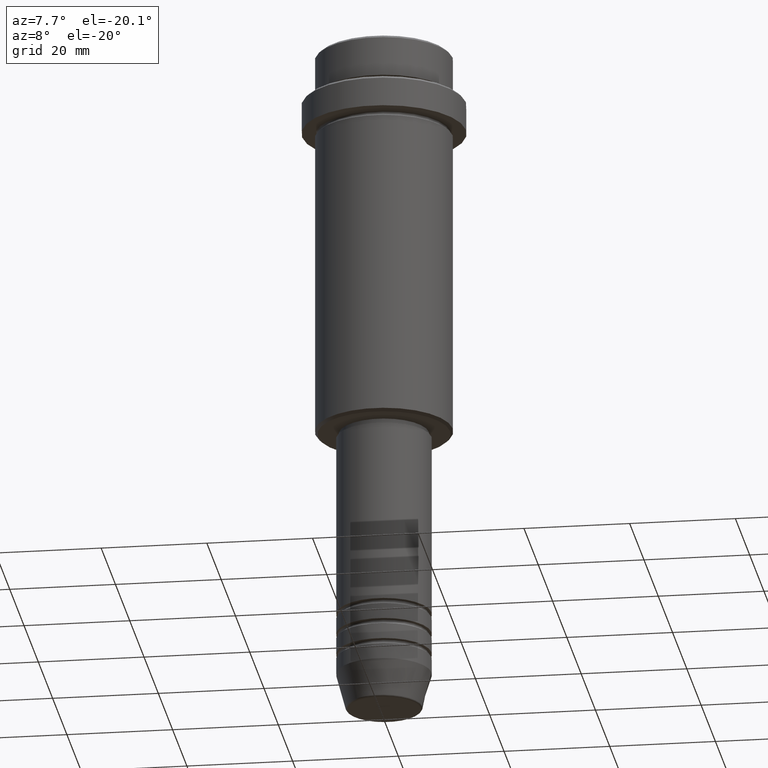
[diagram: clean part render]
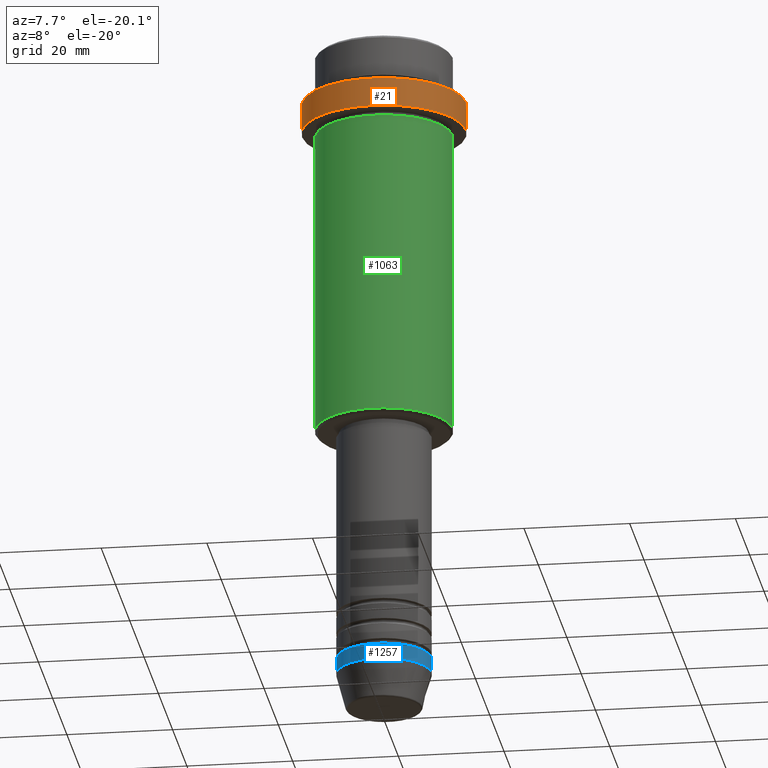
[diagram: same view with three faces highlighted in distinct colors, each labeled with its STEP entity id]
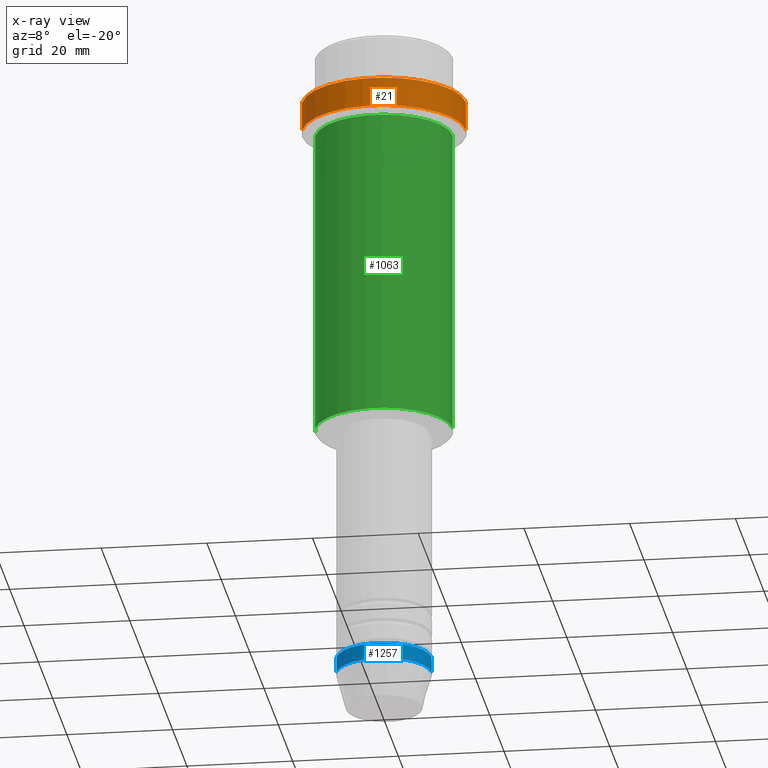
[diagram: x-ray of the same camera — body ghosted, the three highlighted faces saturated]
A machine part, auxiliary view with three faces highlighted in distinct colors.
The next image is the same camera in x-ray (body ghosted, the three faces saturated) — at least one of them is partly hidden behind the body in this view.
Their STEP definitions:

[orange] entity #21 — the highlighted cylindrical surface (partial cylindrical patch) has radius 15.5 mm, axis along (-0, -0, 1).
#21 = ADVANCED_FACE ( 'NONE', ( #635 ), #397, .T. ) ;
#45 = CARTESIAN_POINT ( 'NONE',  ( -15.50000000000000000, 1.898202538678397557E-15, -15.00000000000000000 ) ) ;
#54 = LINE ( 'NONE', #585, #1141 ) ;
#80 = DIRECTION ( 'NONE',  ( 1.000000000000000000, 0.000000000000000000, 0.000000000000000000 ) ) ;
#130 = CARTESIAN_POINT ( 'NONE',  ( 0.000000000000000000, 0.000000000000000000, -15.00000000000000000 ) ) ;
#149 = ORIENTED_EDGE ( 'NONE', *, *, #1332, .T. ) ;
#174 = EDGE_CURVE ( 'NONE', #1203, #442, #559, .T. ) ;
#210 = EDGE_CURVE ( 'NONE', #442, #282, #1304, .T. ) ;
#282 = VERTEX_POINT ( 'NONE', #1254 ) ;
#320 = CARTESIAN_POINT ( 'NONE',  ( 15.50000000000000000, 0.000000000000000000, 0.000000000000000000 ) ) ;
#397 = CYLINDRICAL_SURFACE ( 'NONE', #429, 15.50000000000000000 ) ;
#406 = DIRECTION ( 'NONE',  ( 1.000000000000000000, 0.000000000000000000, 0.000000000000000000 ) ) ;
#429 = AXIS2_PLACEMENT_3D ( 'NONE', #1269, #1060, #406 ) ;
#442 = VERTEX_POINT ( 'NONE', #740 ) ;
#454 = DIRECTION ( 'NONE',  ( -0.000000000000000000, -0.000000000000000000, 1.000000000000000000 ) ) ;
#559 = CIRCLE ( 'NONE', #1280, 15.50000000000000000 ) ;
#585 = CARTESIAN_POINT ( 'NONE',  ( -15.50000000000000000, 1.898202538678397557E-15, 0.000000000000000000 ) ) ;
#617 = DIRECTION ( 'NONE',  ( 0.000000000000000000, 0.000000000000000000, -1.000000000000000000 ) ) ;
#635 = FACE_OUTER_BOUND ( 'NONE', #1235, .T. ) ;
#740 = CARTESIAN_POINT ( 'NONE',  ( 15.50000000000000000, 0.000000000000000000, -15.00000000000000000 ) ) ;
#753 = DIRECTION ( 'NONE',  ( 1.000000000000000000, 0.000000000000000000, 0.000000000000000000 ) ) ;
#767 = ORIENTED_EDGE ( 'NONE', *, *, #174, .T. ) ;
#780 = ORIENTED_EDGE ( 'NONE', *, *, #210, .T. ) ;
#826 = CARTESIAN_POINT ( 'NONE',  ( 0.000000000000000000, 0.000000000000000000, -9.500000000000026645 ) ) ;
#873 = AXIS2_PLACEMENT_3D ( 'NONE', #826, #617, #80 ) ;
#882 = DIRECTION ( 'NONE',  ( -0.000000000000000000, -0.000000000000000000, 1.000000000000000000 ) ) ;
#960 = VERTEX_POINT ( 'NONE', #1155 ) ;
#974 = ORIENTED_EDGE ( 'NONE', *, *, #1139, .F. ) ;
#1060 = DIRECTION ( 'NONE',  ( -0.000000000000000000, -0.000000000000000000, 1.000000000000000000 ) ) ;
#1139 = EDGE_CURVE ( 'NONE', #1203, #960, #54, .T. ) ;
#1141 = VECTOR ( 'NONE', #454, 1000.000000000000000 ) ;
#1151 = CIRCLE ( 'NONE', #873, 15.50000000000000000 ) ;
#1155 = CARTESIAN_POINT ( 'NONE',  ( -15.50000000000000000, 1.898202538678397557E-15, -9.500000000000026645 ) ) ;
#1203 = VERTEX_POINT ( 'NONE', #45 ) ;
#1235 = EDGE_LOOP ( 'NONE', ( #974, #767, #780, #149 ) ) ;
#1254 = CARTESIAN_POINT ( 'NONE',  ( 15.50000000000000000, 0.000000000000000000, -9.500000000000026645 ) ) ;
#1269 = CARTESIAN_POINT ( 'NONE',  ( 0.000000000000000000, 0.000000000000000000, 0.000000000000000000 ) ) ;
#1280 = AXIS2_PLACEMENT_3D ( 'NONE', #130, #1325, #753 ) ;
#1304 = LINE ( 'NONE', #320, #1415 ) ;
#1325 = DIRECTION ( 'NONE',  ( -0.000000000000000000, -0.000000000000000000, 1.000000000000000000 ) ) ;
#1332 = EDGE_CURVE ( 'NONE', #282, #960, #1151, .T. ) ;
#1415 = VECTOR ( 'NONE', #882, 1000.000000000000000 ) ;

[blue] entity #1257 — the highlighted cylindrical surface (partial cylindrical patch) has radius 9 mm, axis along (-0, -0, 1).
#26 = FACE_OUTER_BOUND ( 'NONE', #212, .T. ) ;
#134 = ORIENTED_EDGE ( 'NONE', *, *, #153, .F. ) ;
#143 = CARTESIAN_POINT ( 'NONE',  ( 0.000000000000000000, 0.000000000000000000, 0.000000000000000000 ) ) ;
#147 = VERTEX_POINT ( 'NONE', #897 ) ;
#153 = EDGE_CURVE ( 'NONE', #521, #147, #868, .T. ) ;
#212 = EDGE_LOOP ( 'NONE', ( #615, #1247, #326, #134 ) ) ;
#245 = AXIS2_PLACEMENT_3D ( 'NONE', #1212, #549, #1333 ) ;
#272 = VERTEX_POINT ( 'NONE', #369 ) ;
#308 = CIRCLE ( 'NONE', #1119, 9.000000000000000000 ) ;
#326 = ORIENTED_EDGE ( 'NONE', *, *, #652, .T. ) ;
#349 = CYLINDRICAL_SURFACE ( 'NONE', #453, 9.000000000000000000 ) ;
#369 = CARTESIAN_POINT ( 'NONE',  ( -9.000000000000000000, 1.102182119232617714E-15, -123.0000000000000000 ) ) ;
#404 = CARTESIAN_POINT ( 'NONE',  ( -9.000000000000000000, 1.102182119232617714E-15, 0.000000000000000000 ) ) ;
#453 = AXIS2_PLACEMENT_3D ( 'NONE', #143, #782, #1225 ) ;
#519 = EDGE_CURVE ( 'NONE', #272, #521, #732, .T. ) ;
#521 = VERTEX_POINT ( 'NONE', #1398 ) ;
#549 = DIRECTION ( 'NONE',  ( -0.000000000000000000, -0.000000000000000000, 1.000000000000000000 ) ) ;
#615 = ORIENTED_EDGE ( 'NONE', *, *, #519, .F. ) ;
#652 = EDGE_CURVE ( 'NONE', #817, #147, #1004, .T. ) ;
#674 = CARTESIAN_POINT ( 'NONE',  ( 9.000000000000000000, 0.000000000000000000, -123.0000000000000000 ) ) ;
#732 = LINE ( 'NONE', #404, #745 ) ;
#745 = VECTOR ( 'NONE', #847, 1000.000000000000000 ) ;
#772 = CARTESIAN_POINT ( 'NONE',  ( 9.000000000000000000, 0.000000000000000000, 0.000000000000000000 ) ) ;
#782 = DIRECTION ( 'NONE',  ( -0.000000000000000000, -0.000000000000000000, 1.000000000000000000 ) ) ;
#806 = DIRECTION ( 'NONE',  ( 1.000000000000000000, 0.000000000000000000, 0.000000000000000000 ) ) ;
#817 = VERTEX_POINT ( 'NONE', #674 ) ;
#847 = DIRECTION ( 'NONE',  ( -0.000000000000000000, -0.000000000000000000, 1.000000000000000000 ) ) ;
#868 = CIRCLE ( 'NONE', #245, 9.000000000000000000 ) ;
#897 = CARTESIAN_POINT ( 'NONE',  ( 9.000000000000000000, 0.000000000000000000, -120.0000000000000000 ) ) ;
#900 = DIRECTION ( 'NONE',  ( -0.000000000000000000, -0.000000000000000000, 1.000000000000000000 ) ) ;
#1004 = LINE ( 'NONE', #772, #1370 ) ;
#1119 = AXIS2_PLACEMENT_3D ( 'NONE', #1145, #900, #806 ) ;
#1145 = CARTESIAN_POINT ( 'NONE',  ( 0.000000000000000000, 0.000000000000000000, -123.0000000000000000 ) ) ;
#1153 = EDGE_CURVE ( 'NONE', #272, #817, #308, .T. ) ;
#1212 = CARTESIAN_POINT ( 'NONE',  ( 0.000000000000000000, 0.000000000000000000, -120.0000000000000000 ) ) ;
#1218 = DIRECTION ( 'NONE',  ( -0.000000000000000000, -0.000000000000000000, 1.000000000000000000 ) ) ;
#1225 = DIRECTION ( 'NONE',  ( 1.000000000000000000, 0.000000000000000000, 0.000000000000000000 ) ) ;
#1247 = ORIENTED_EDGE ( 'NONE', *, *, #1153, .T. ) ;
#1257 = ADVANCED_FACE ( 'NONE', ( #26 ), #349, .T. ) ;
#1333 = DIRECTION ( 'NONE',  ( 1.000000000000000000, 0.000000000000000000, 0.000000000000000000 ) ) ;
#1370 = VECTOR ( 'NONE', #1218, 1000.000000000000000 ) ;
#1398 = CARTESIAN_POINT ( 'NONE',  ( -9.000000000000000000, 1.102182119232617714E-15, -120.0000000000000000 ) ) ;

[green] entity #1063 — the highlighted cylindrical surface (partial cylindrical patch) has radius 13 mm, axis along (-0, -0, 1).
#60 = DIRECTION ( 'NONE',  ( -0.000000000000000000, -0.000000000000000000, 1.000000000000000000 ) ) ;
#70 = AXIS2_PLACEMENT_3D ( 'NONE', #812, #60, #1286 ) ;
#90 = CARTESIAN_POINT ( 'NONE',  ( 13.00000000000000000, 0.000000000000000000, 0.000000000000000000 ) ) ;
#177 = CARTESIAN_POINT ( 'NONE',  ( 0.000000000000000000, 0.000000000000000000, -74.50000000000002842 ) ) ;
#185 = LINE ( 'NONE', #605, #448 ) ;
#230 = FACE_OUTER_BOUND ( 'NONE', #612, .T. ) ;
#249 = VERTEX_POINT ( 'NONE', #341 ) ;
#302 = ORIENTED_EDGE ( 'NONE', *, *, #445, .T. ) ;
#341 = CARTESIAN_POINT ( 'NONE',  ( -13.00000000000000000, 1.592040838891559095E-15, -74.50000000000002842 ) ) ;
#359 = VECTOR ( 'NONE', #1173, 1000.000000000000000 ) ;
#445 = EDGE_CURVE ( 'NONE', #1411, #934, #516, .T. ) ;
#448 = VECTOR ( 'NONE', #1160, 1000.000000000000000 ) ;
#463 = AXIS2_PLACEMENT_3D ( 'NONE', #177, #951, #1042 ) ;
#492 = CARTESIAN_POINT ( 'NONE',  ( 13.00000000000000000, 0.000000000000000000, -16.00000000000000000 ) ) ;
#498 = EDGE_CURVE ( 'NONE', #249, #853, #185, .T. ) ;
#516 = LINE ( 'NONE', #90, #359 ) ;
#605 = CARTESIAN_POINT ( 'NONE',  ( -13.00000000000000000, 1.592040838891559095E-15, 0.000000000000000000 ) ) ;
#612 = EDGE_LOOP ( 'NONE', ( #1292, #1264, #302, #849 ) ) ;
#756 = DIRECTION ( 'NONE',  ( 1.000000000000000000, 0.000000000000000000, 0.000000000000000000 ) ) ;
#812 = CARTESIAN_POINT ( 'NONE',  ( 0.000000000000000000, 0.000000000000000000, -16.00000000000000000 ) ) ;
#827 = CARTESIAN_POINT ( 'NONE',  ( -13.00000000000000000, 1.592040838891559095E-15, -16.00000000000000000 ) ) ;
#849 = ORIENTED_EDGE ( 'NONE', *, *, #1353, .F. ) ;
#853 = VERTEX_POINT ( 'NONE', #827 ) ;
#901 = EDGE_CURVE ( 'NONE', #249, #1411, #1003, .T. ) ;
#934 = VERTEX_POINT ( 'NONE', #492 ) ;
#951 = DIRECTION ( 'NONE',  ( -0.000000000000000000, -0.000000000000000000, 1.000000000000000000 ) ) ;
#1002 = CYLINDRICAL_SURFACE ( 'NONE', #1024, 13.00000000000000000 ) ;
#1003 = CIRCLE ( 'NONE', #463, 13.00000000000000000 ) ;
#1024 = AXIS2_PLACEMENT_3D ( 'NONE', #1196, #1113, #756 ) ;
#1042 = DIRECTION ( 'NONE',  ( -1.000000000000000000, 0.000000000000000000, 0.000000000000000000 ) ) ;
#1063 = ADVANCED_FACE ( 'NONE', ( #230 ), #1002, .T. ) ;
#1113 = DIRECTION ( 'NONE',  ( -0.000000000000000000, -0.000000000000000000, 1.000000000000000000 ) ) ;
#1160 = DIRECTION ( 'NONE',  ( -0.000000000000000000, -0.000000000000000000, 1.000000000000000000 ) ) ;
#1173 = DIRECTION ( 'NONE',  ( -0.000000000000000000, -0.000000000000000000, 1.000000000000000000 ) ) ;
#1196 = CARTESIAN_POINT ( 'NONE',  ( 0.000000000000000000, 0.000000000000000000, 0.000000000000000000 ) ) ;
#1217 = CIRCLE ( 'NONE', #70, 13.00000000000000000 ) ;
#1264 = ORIENTED_EDGE ( 'NONE', *, *, #901, .T. ) ;
#1278 = CARTESIAN_POINT ( 'NONE',  ( 13.00000000000000000, 0.000000000000000000, -74.50000000000002842 ) ) ;
#1286 = DIRECTION ( 'NONE',  ( 1.000000000000000000, 0.000000000000000000, 0.000000000000000000 ) ) ;
#1292 = ORIENTED_EDGE ( 'NONE', *, *, #498, .F. ) ;
#1353 = EDGE_CURVE ( 'NONE', #853, #934, #1217, .T. ) ;
#1411 = VERTEX_POINT ( 'NONE', #1278 ) ;